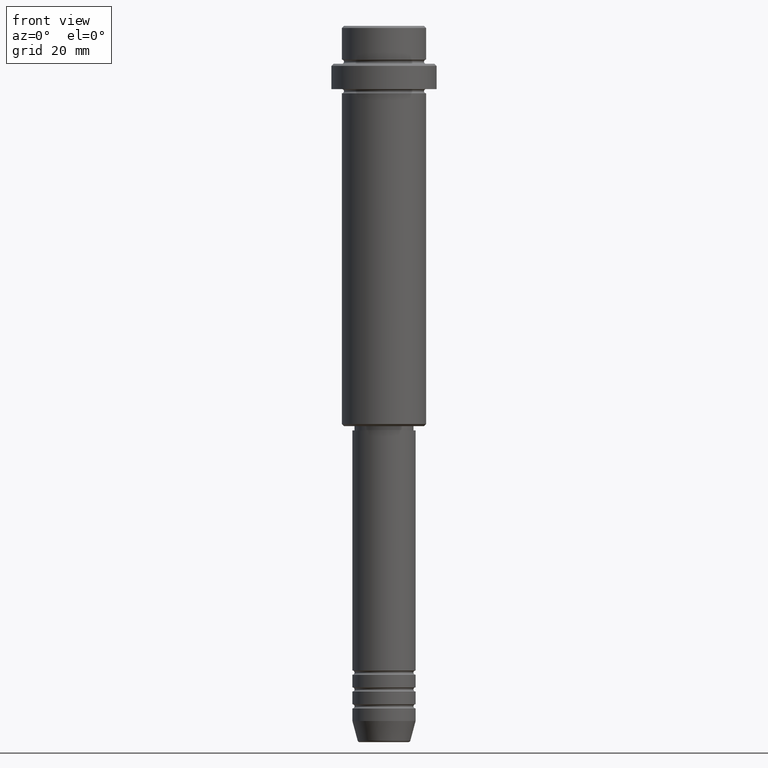
[diagram: clean part render]
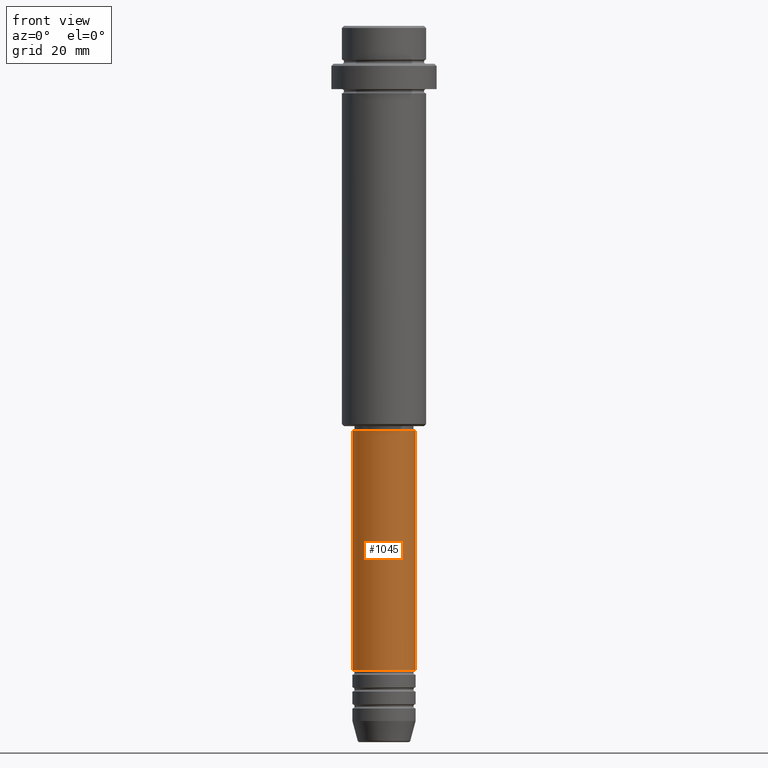
[diagram: same view with one face highlighted and labeled with its STEP entity id]
A machine part, front view. The second image highlights one B-rep face of the part: STEP entity #1045.
In plain terms, the highlighted cylindrical surface (edge-blend (fillet) strip) has radius 7.5 mm, axis along (-0, -0, 1).
Its self-contained STEP definition (entity closure, byte-faithful):
#7 = CARTESIAN_POINT ( 'NONE',  ( 0.000000000000000000, 0.000000000000000000, -152.9999999999998579 ) ) ;
#50 = DIRECTION ( 'NONE',  ( -0.000000000000000000, -0.000000000000000000, 1.000000000000000000 ) ) ;
#92 = DIRECTION ( 'NONE',  ( -0.000000000000000000, -0.000000000000000000, 1.000000000000000000 ) ) ;
#153 = CIRCLE ( 'NONE', #970, 7.500000000000000000 ) ;
#159 = DIRECTION ( 'NONE',  ( 1.000000000000000000, 0.000000000000000000, 0.000000000000000000 ) ) ;
#205 = DIRECTION ( 'NONE',  ( 1.000000000000000000, 0.000000000000000000, 0.000000000000000000 ) ) ;
#209 = CARTESIAN_POINT ( 'NONE',  ( -7.500000000000000000, 9.184850993605147944E-16, -152.9999999999998579 ) ) ;
#271 = VECTOR ( 'NONE', #762, 1000.000000000000000 ) ;
#348 = DIRECTION ( 'NONE',  ( -0.000000000000000000, -0.000000000000000000, 1.000000000000000000 ) ) ;
#396 = FACE_OUTER_BOUND ( 'NONE', #936, .T. ) ;
#449 = CARTESIAN_POINT ( 'NONE',  ( 7.500000000000000000, 0.000000000000000000, -152.9999999999998579 ) ) ;
#504 = VERTEX_POINT ( 'NONE', #209 ) ;
#518 = ORIENTED_EDGE ( 'NONE', *, *, #1405, .T. ) ;
#566 = CARTESIAN_POINT ( 'NONE',  ( -7.500000000000000000, 9.184850993605147944E-16, -95.99999999999997158 ) ) ;
#588 = LINE ( 'NONE', #925, #1033 ) ;
#595 = VERTEX_POINT ( 'NONE', #993 ) ;
#608 = VERTEX_POINT ( 'NONE', #449 ) ;
#646 = VERTEX_POINT ( 'NONE', #566 ) ;
#689 = EDGE_CURVE ( 'NONE', #608, #595, #588, .T. ) ;
#762 = DIRECTION ( 'NONE',  ( -0.000000000000000000, -0.000000000000000000, 1.000000000000000000 ) ) ;
#779 = DIRECTION ( 'NONE',  ( 1.000000000000000000, 0.000000000000000000, 0.000000000000000000 ) ) ;
#788 = CARTESIAN_POINT ( 'NONE',  ( -7.500000000000000000, 9.184850993605147944E-16, 0.000000000000000000 ) ) ;
#919 = CARTESIAN_POINT ( 'NONE',  ( 0.000000000000000000, 0.000000000000000000, 0.000000000000000000 ) ) ;
#925 = CARTESIAN_POINT ( 'NONE',  ( 7.500000000000000000, 0.000000000000000000, 0.000000000000000000 ) ) ;
#936 = EDGE_LOOP ( 'NONE', ( #1006, #518, #1287, #1248 ) ) ;
#943 = CARTESIAN_POINT ( 'NONE',  ( 0.000000000000000000, 0.000000000000000000, -95.99999999999997158 ) ) ;
#959 = DIRECTION ( 'NONE',  ( -0.000000000000000000, -0.000000000000000000, 1.000000000000000000 ) ) ;
#970 = AXIS2_PLACEMENT_3D ( 'NONE', #943, #92, #205 ) ;
#993 = CARTESIAN_POINT ( 'NONE',  ( 7.500000000000000000, 0.000000000000000000, -95.99999999999997158 ) ) ;
#1006 = ORIENTED_EDGE ( 'NONE', *, *, #1329, .F. ) ;
#1033 = VECTOR ( 'NONE', #959, 1000.000000000000000 ) ;
#1045 = ADVANCED_FACE ( 'NONE', ( #396 ), #1148, .T. ) ;
#1084 = CIRCLE ( 'NONE', #1157, 7.500000000000000000 ) ;
#1148 = CYLINDRICAL_SURFACE ( 'NONE', #1408, 7.500000000000000000 ) ;
#1157 = AXIS2_PLACEMENT_3D ( 'NONE', #7, #348, #779 ) ;
#1213 = EDGE_CURVE ( 'NONE', #646, #595, #153, .T. ) ;
#1248 = ORIENTED_EDGE ( 'NONE', *, *, #1213, .F. ) ;
#1287 = ORIENTED_EDGE ( 'NONE', *, *, #689, .T. ) ;
#1329 = EDGE_CURVE ( 'NONE', #504, #646, #1417, .T. ) ;
#1405 = EDGE_CURVE ( 'NONE', #504, #608, #1084, .T. ) ;
#1408 = AXIS2_PLACEMENT_3D ( 'NONE', #919, #50, #159 ) ;
#1417 = LINE ( 'NONE', #788, #271 ) ;